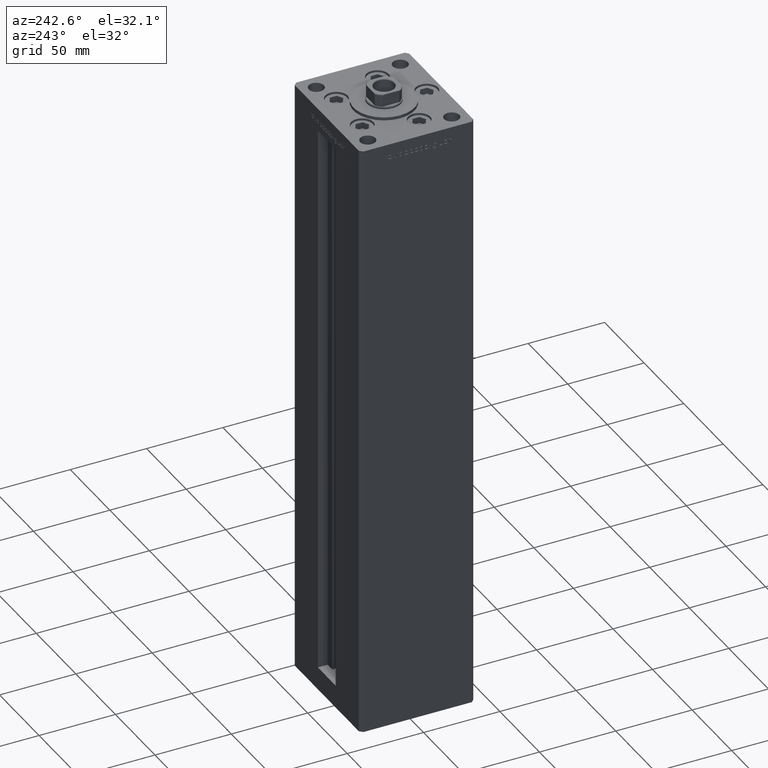
[diagram: clean part render]
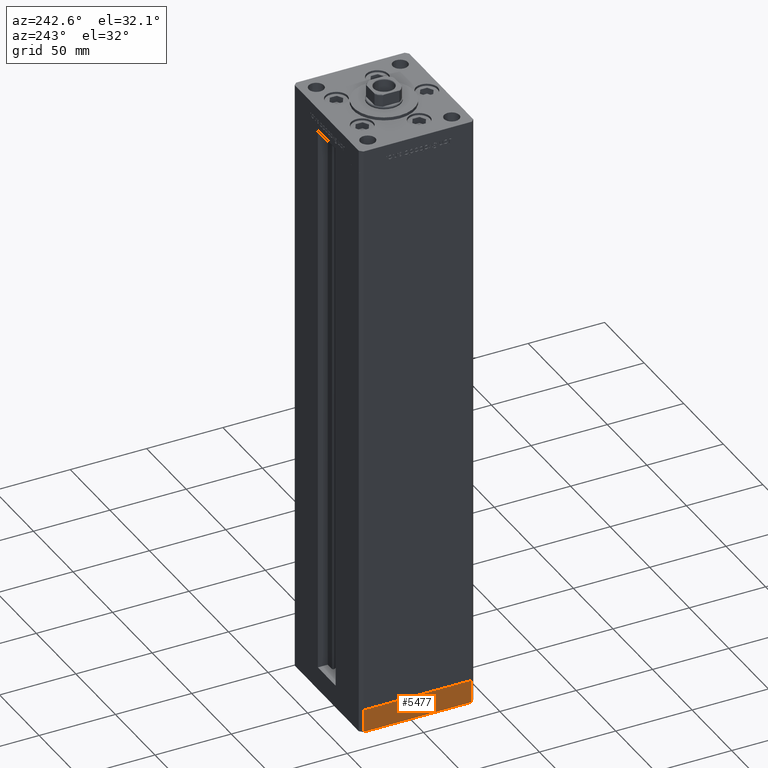
[diagram: same view with one face highlighted and labeled with its STEP entity id]
A machine part, auxiliary view. The second image highlights one B-rep face of the part: STEP entity #5477.
In plain terms, the highlighted planar face has unit normal (-1, 0, 0).
Its self-contained STEP definition (entity closure, byte-faithful):
#192 = EDGE_CURVE ( 'NONE', #10036, #46159, #37544, .T. ) ;
#855 = VECTOR ( 'NONE', #34443, 1000.000000000000000 ) ;
#3123 = FACE_OUTER_BOUND ( 'NONE', #39075, .T. ) ;
#3483 = VECTOR ( 'NONE', #6427, 1000.000000000000000 ) ;
#5135 = CARTESIAN_POINT ( 'NONE',  ( 42.50000000000000711, -35.50000000000000000, 0.000000000000000000 ) ) ;
#5477 = ADVANCED_FACE ( 'NONE', ( #3123 ), #19106, .T. ) ;
#6427 = DIRECTION ( 'NONE',  ( -1.172770800660376741E-15, 1.000000000000000000, 0.000000000000000000 ) ) ;
#9746 = VERTEX_POINT ( 'NONE', #5135 ) ;
#10036 = VERTEX_POINT ( 'NONE', #37063 ) ;
#11340 = EDGE_CURVE ( 'NONE', #9746, #46159, #35217, .T. ) ;
#15675 = EDGE_CURVE ( 'NONE', #21177, #10036, #41775, .T. ) ;
#15721 = VECTOR ( 'NONE', #33362, 1000.000000000000000 ) ;
#17687 = CARTESIAN_POINT ( 'NONE',  ( 42.50000000000000711, -35.50000000000000000, -15.00000000000000000 ) ) ;
#19106 = PLANE ( 'NONE',  #20766 ) ;
#19262 = ORIENTED_EDGE ( 'NONE', *, *, #11340, .F. ) ;
#19749 = VECTOR ( 'NONE', #20354, 1000.000000000000000 ) ;
#20354 = DIRECTION ( 'NONE',  ( 0.000000000000000000, 0.000000000000000000, 1.000000000000000000 ) ) ;
#20766 = AXIS2_PLACEMENT_3D ( 'NONE', #39779, #31169, #47125 ) ;
#21177 = VERTEX_POINT ( 'NONE', #26985 ) ;
#21434 = ORIENTED_EDGE ( 'NONE', *, *, #45680, .F. ) ;
#23290 = ORIENTED_EDGE ( 'NONE', *, *, #15675, .T. ) ;
#25064 = CARTESIAN_POINT ( 'NONE',  ( 42.50000000000000711, -35.50000000000000000, -15.00000000000000000 ) ) ;
#26985 = CARTESIAN_POINT ( 'NONE',  ( 42.50000000000000711, -35.50000000000000000, -15.00000000000000000 ) ) ;
#28753 = LINE ( 'NONE', #25064, #19749 ) ;
#29160 = CARTESIAN_POINT ( 'NONE',  ( 42.49999999999992895, 35.50000000000000000, -15.00000000000000000 ) ) ;
#31169 = DIRECTION ( 'NONE',  ( 1.000000000000000000, 1.172770800660376741E-15, -0.000000000000000000 ) ) ;
#32829 = ORIENTED_EDGE ( 'NONE', *, *, #192, .T. ) ;
#33362 = DIRECTION ( 'NONE',  ( 0.000000000000000000, 0.000000000000000000, 1.000000000000000000 ) ) ;
#34443 = DIRECTION ( 'NONE',  ( -1.172770800660376741E-15, 1.000000000000000000, 0.000000000000000000 ) ) ;
#34965 = CARTESIAN_POINT ( 'NONE',  ( 42.49999999999992895, 35.50000000000000000, 0.000000000000000000 ) ) ;
#35217 = LINE ( 'NONE', #47230, #855 ) ;
#37063 = CARTESIAN_POINT ( 'NONE',  ( 42.49999999999992895, 35.50000000000000000, -15.00000000000000000 ) ) ;
#37544 = LINE ( 'NONE', #29160, #15721 ) ;
#39075 = EDGE_LOOP ( 'NONE', ( #19262, #21434, #23290, #32829 ) ) ;
#39779 = CARTESIAN_POINT ( 'NONE',  ( 42.50000000000000711, -35.50000000000000000, -15.00000000000000000 ) ) ;
#41775 = LINE ( 'NONE', #17687, #3483 ) ;
#45680 = EDGE_CURVE ( 'NONE', #21177, #9746, #28753, .T. ) ;
#46159 = VERTEX_POINT ( 'NONE', #34965 ) ;
#47125 = DIRECTION ( 'NONE',  ( -1.172770800660376741E-15, 1.000000000000000000, 0.000000000000000000 ) ) ;
#47230 = CARTESIAN_POINT ( 'NONE',  ( 42.50000000000000711, -35.50000000000000000, 0.000000000000000000 ) ) ;